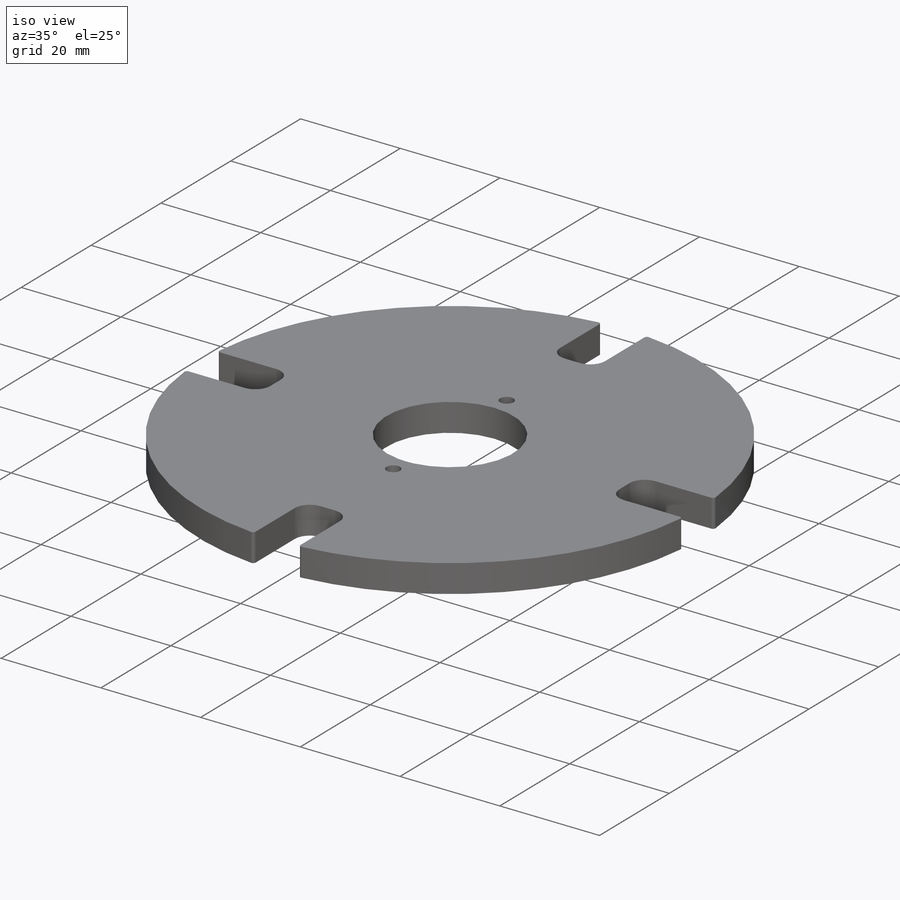
[diagram: iso view]
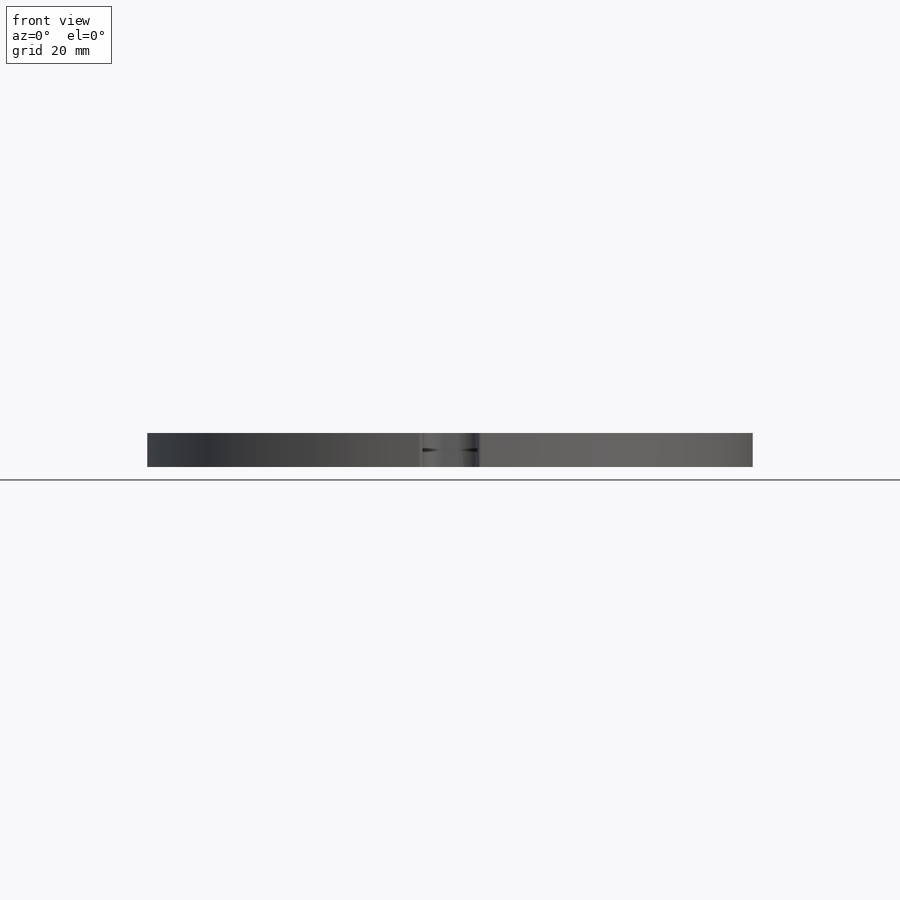
[diagram: front view]
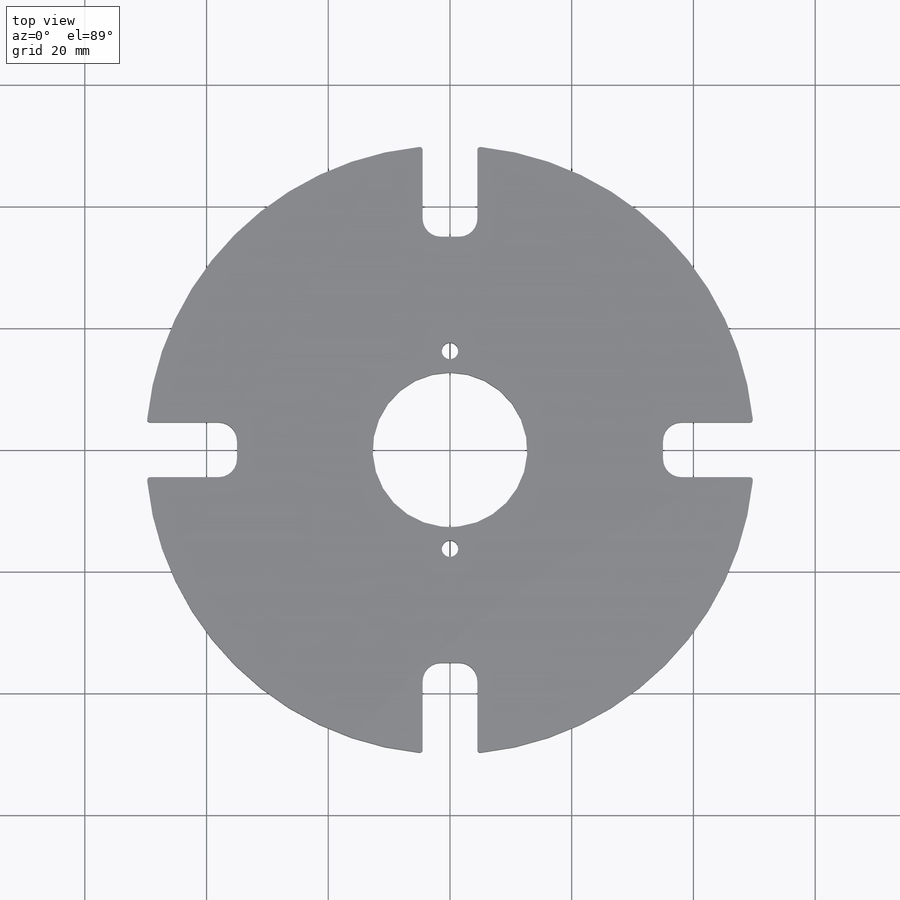
[diagram: top view]
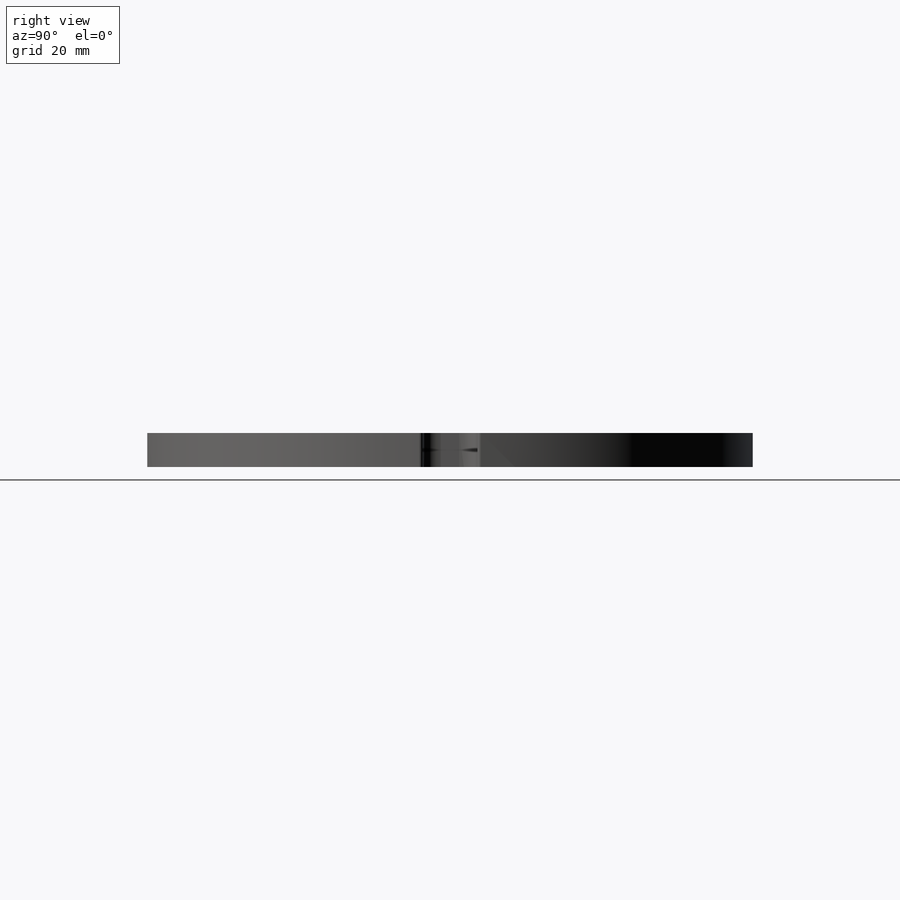
[diagram: right view]
SOLIDWORKS PART (.sldprt)
format: sldprt  version: not decoded by parser v0  size: 652,288 bytes
history: native  units: mm
features: sketch x5, material x1, extrude x1, cut_extrude x1, fillet x1, hole x1 (+13 scaffold rows collapsed)
feature tree (23):
  scaffold x13  (default folders/planes/origin — collapsed)
  material  "Material <not specified>"
  sketch  "Sketch3"  dims[D1=25.4mm D2=0.0mm]
  extrude  "Boss-Extrude4"  Depth=4.5mm
  sketch  "Sketch6"  dims[D3=3.0mm D4=3.0mm D1=9.0mm D2=30.0mm D5=4.0]
  cut_extrude  "Cut-Extrude18"  Depth=10mm
  sketch  "Sketch7"  dims[D1=100.0mm]
  fillet  "Fillet2"  Radius=0.5mm
  hole  "CSK for #4 Flat Head Machine Screw (100)1"  Diameter=3.4544mm Depth=4.5mm
  sketch  "Sketch9"
  sketch  "Sketch8"  dims[hole-wizard template sketch: 55 standard entries collapsed; hole parameters kept: c17.Thru Hole Depth=4.5mm c17.Near C'Sink Dia.=5.715mm c17.D4=~3.666174mm c17.Near C'Sink Angle=100.0deg]
decode coverage: 8 of 9 modeling features carry decoded parameters
note: ~ marks probable driven/reference dimensions
note: suppression state not decoded; provenance and decode notes live in map.json
